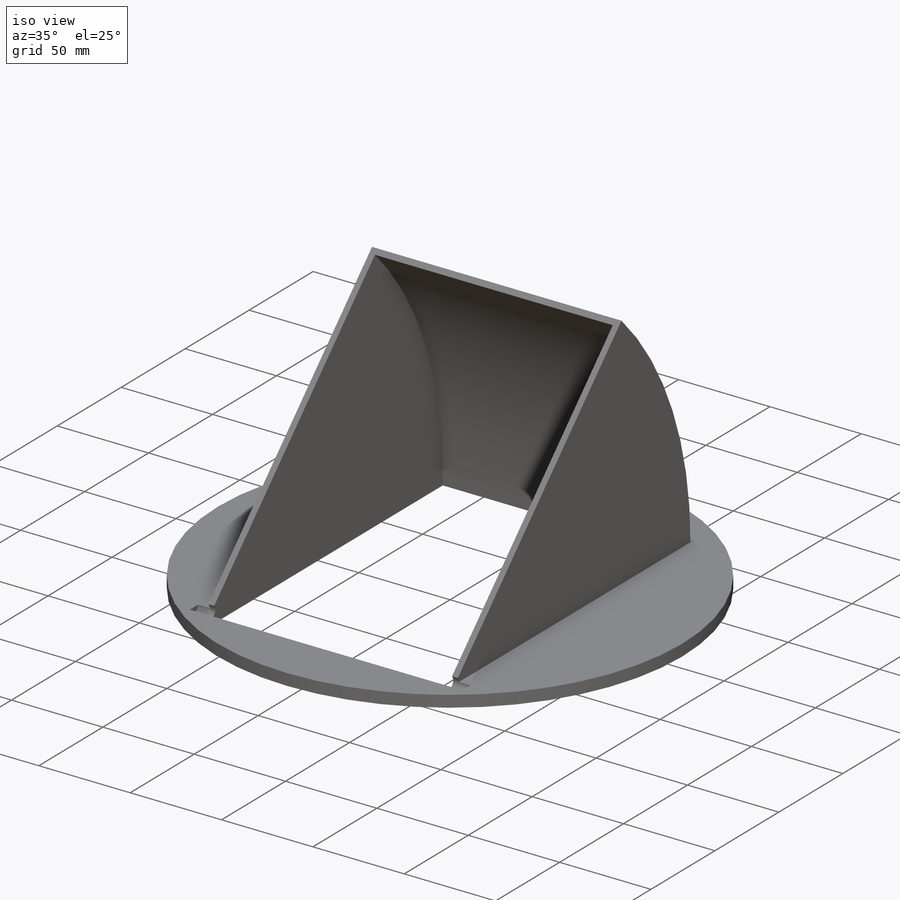
[diagram: iso view]
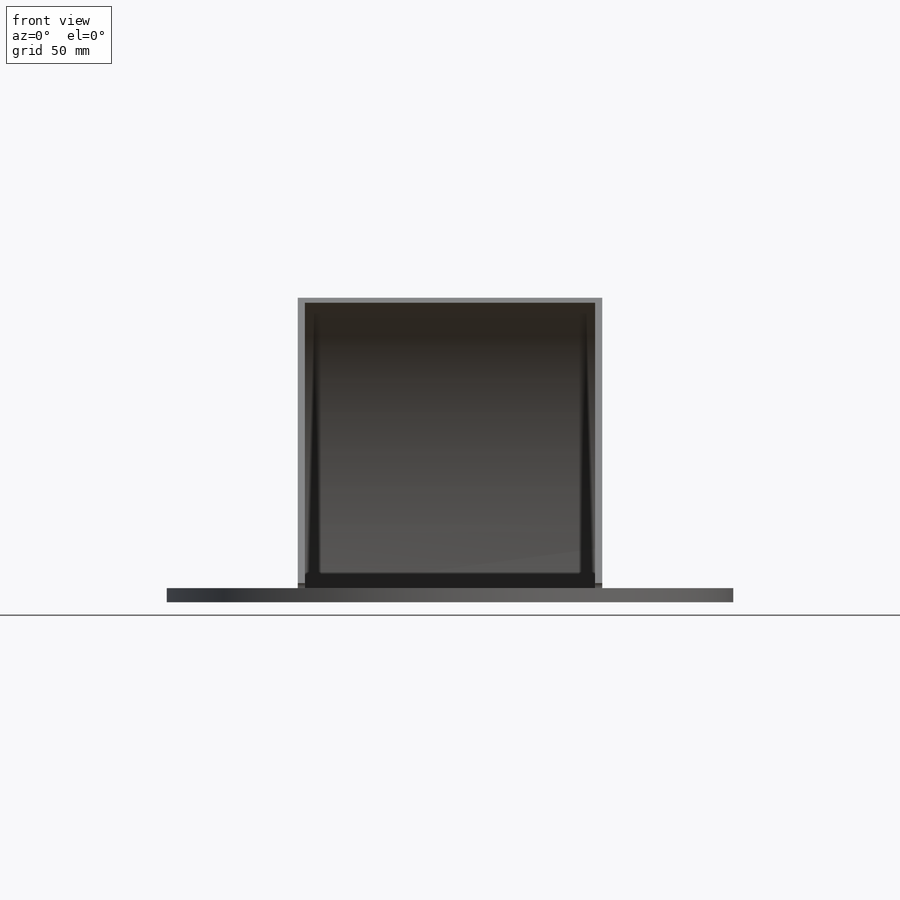
[diagram: front view]
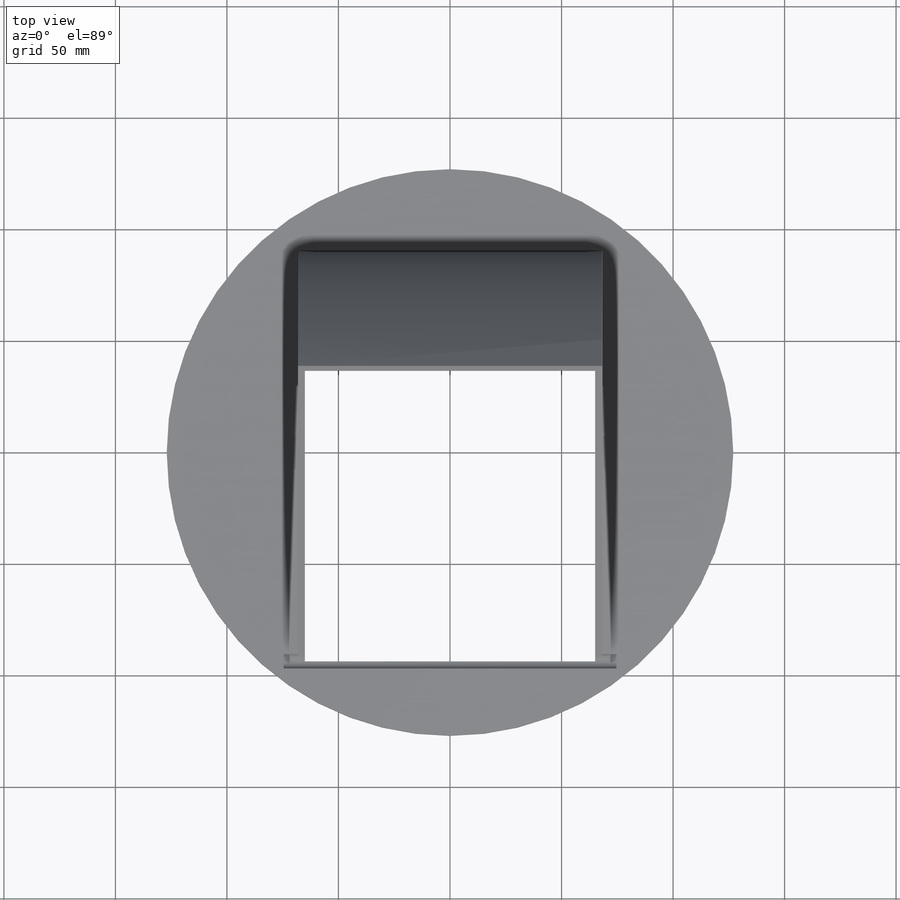
[diagram: top view]
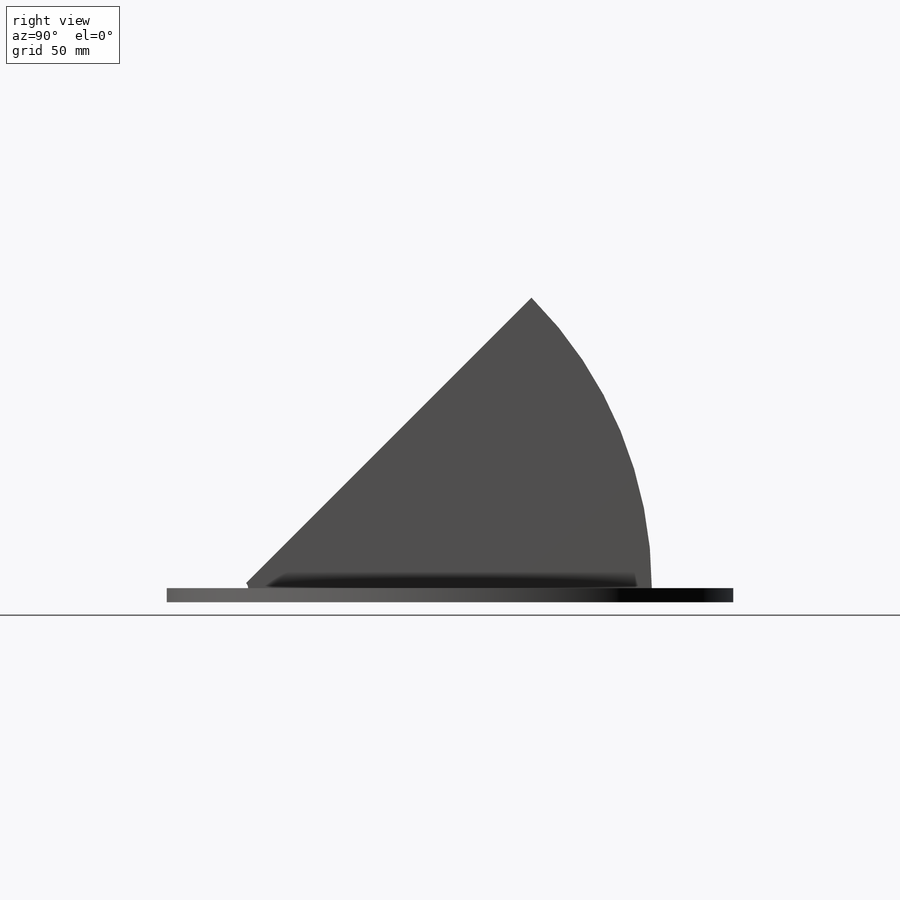
[diagram: right view]
SOLIDWORKS PART (.sldprt)
format: sldprt  version: not decoded by parser v0  size: 266,752 bytes
history: native  units: mm
features: sketch x9, cut_extrude x5, extrude x3, material x1 (+12 scaffold rows collapsed)
feature tree (30):
  scaffold x12  (default folders/planes/origin — collapsed)
  material  "Material <not specified>"
  sketch  "Sketch1"  dims[D1=254.0mm]
  extrude  "Boss-Extrude1"  Depth=6.35mm
  sketch  "Sketch2"  dims[D1=180.975mm D2=130.175mm D3=3.175mm]
  extrude  "Boss-Extrude2"  Depth=180.975mm
  sketch  "Sketch3"
  cut_extrude  "Cut-Extrude1"  [1 undecoded]
  sketch  "Sketch6"  dims[D1=3.175mm D2=3.175mm]
  cut_extrude  "Cut-Extrude2"  [1 undecoded]
  sketch  "Sketch7"
  cut_extrude  "Cut-Extrude3"  [1 undecoded]
  sketch  "Sketch10"  dims[D1=3.175mm]
  extrude  "Boss-Extrude3"  Depth=136.525mm
  sketch  "Sketch12"
  cut_extrude  "Cut-Extrude4"  Depth=136.525mm
  sketch  "Sketch14"  dims[D1=~0.807301mm]
  sketch  "Sketch15"  dims[D1=~3.527862mm]
  cut_extrude  "Cut-Extrude5"  Depth=142.875mm
decode coverage: 11 of 17 modeling features carry decoded parameters
note: ~ marks probable driven/reference dimensions
note: 3 parameter values undecoded
summary: no parameter record found for 3 features
note: suppression state not decoded; provenance and decode notes live in map.json
